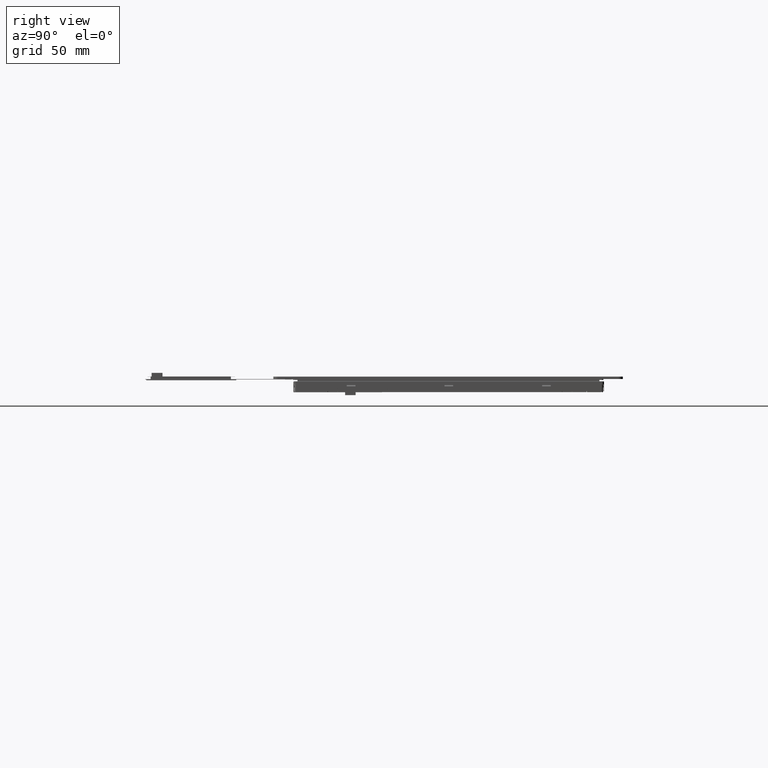
[diagram: clean part render]
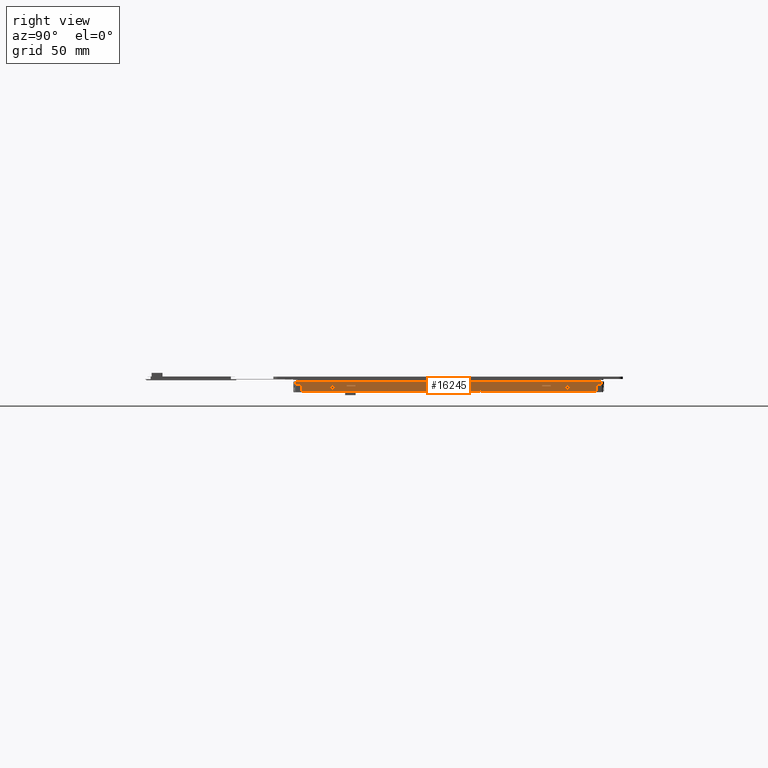
[diagram: same view with one face highlighted and labeled with its STEP entity id]
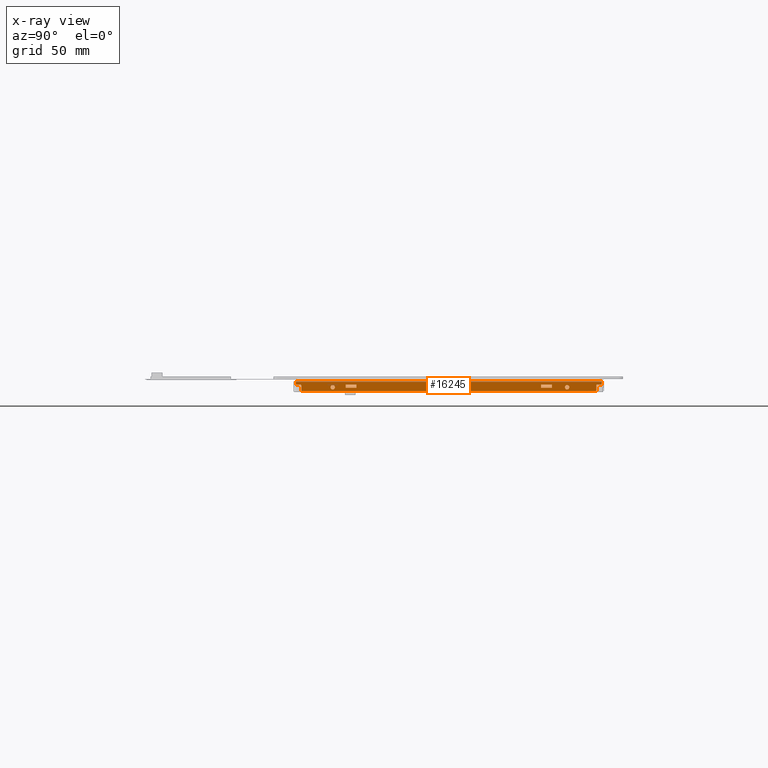
[diagram: x-ray of the same camera — body ghosted, the highlighted face saturated]
A machine part, right view. The second image highlights one B-rep face of the part: STEP entity #16245.
The next image is the same camera in x-ray: the body ghosted, the highlighted face saturated — about 0% of this face is hidden behind the body in this view.
In plain terms, the highlighted planar face has unit normal (1, -0, 0).
Its self-contained STEP definition (entity closure, byte-faithful):
#78=FACE_BOUND('',#2004,.T.);
#79=FACE_BOUND('',#2005,.T.);
#80=FACE_BOUND('',#2006,.T.);
#81=FACE_BOUND('',#2007,.T.);
#82=FACE_BOUND('',#2008,.T.);
#328=PLANE('',#17234);
#1111=FACE_OUTER_BOUND('',#2003,.T.);
#2003=EDGE_LOOP('',(#12424,#12425,#12426,#12427,#12428,#12429,#12430,#12431,
#12432,#12433,#12434,#12435));
#2004=EDGE_LOOP('',(#12436,#12437,#12438,#12439));
#2005=EDGE_LOOP('',(#12440,#12441,#12442,#12443));
#2006=EDGE_LOOP('',(#12444,#12445,#12446,#12447));
#2007=EDGE_LOOP('',(#12448));
#2008=EDGE_LOOP('',(#12449));
#3072=LINE('',#23255,#5193);
#3151=LINE('',#23430,#5272);
#3155=LINE('',#23438,#5276);
#3158=LINE('',#23444,#5279);
#3161=LINE('',#23449,#5282);
#3163=LINE('',#23454,#5284);
#3167=LINE('',#23462,#5288);
#3170=LINE('',#23468,#5291);
#3173=LINE('',#23473,#5294);
#3175=LINE('',#23478,#5296);
#3179=LINE('',#23486,#5300);
#3182=LINE('',#23492,#5303);
#3185=LINE('',#23497,#5306);
#3233=LINE('',#23601,#5354);
#3258=LINE('',#23676,#5379);
#3286=LINE('',#23739,#5407);
#3291=LINE('',#23750,#5412);
#3293=LINE('',#23755,#5414);
#3302=LINE('',#23846,#5423);
#3303=LINE('',#23921,#5424);
#5193=VECTOR('',#18748,10.);
#5272=VECTOR('',#18911,10.);
#5276=VECTOR('',#18917,10.);
#5279=VECTOR('',#18922,10.);
#5282=VECTOR('',#18927,10.);
#5284=VECTOR('',#18931,10.);
#5288=VECTOR('',#18937,10.);
#5291=VECTOR('',#18942,10.);
#5294=VECTOR('',#18947,10.);
#5296=VECTOR('',#18951,10.);
#5300=VECTOR('',#18957,10.);
#5303=VECTOR('',#18962,10.);
#5306=VECTOR('',#18967,10.);
#5354=VECTOR('',#19059,10.);
#5379=VECTOR('',#19122,10.);
#5407=VECTOR('',#19178,10.);
#5412=VECTOR('',#19187,10.);
#5414=VECTOR('',#19191,10.);
#5423=VECTOR('',#19216,10.);
#5424=VECTOR('',#19221,10.);
#7019=CIRCLE('',#17199,0.500000000000043);
#7020=CIRCLE('',#17201,0.500000000000013);
#7026=CIRCLE('',#17212,0.499999999999243);
#7028=CIRCLE('',#17217,0.499999999999978);
#7038=CIRCLE('',#17235,0.999999999999997);
#7039=CIRCLE('',#17236,1.);
#7495=VERTEX_POINT('',#23253);
#7496=VERTEX_POINT('',#23254);
#7549=VERTEX_POINT('',#23428);
#7550=VERTEX_POINT('',#23429);
#7553=VERTEX_POINT('',#23437);
#7555=VERTEX_POINT('',#23443);
#7557=VERTEX_POINT('',#23452);
#7558=VERTEX_POINT('',#23453);
#7561=VERTEX_POINT('',#23461);
#7563=VERTEX_POINT('',#23467);
#7565=VERTEX_POINT('',#23476);
#7566=VERTEX_POINT('',#23477);
#7569=VERTEX_POINT('',#23485);
#7571=VERTEX_POINT('',#23491);
#7605=VERTEX_POINT('',#23598);
#7606=VERTEX_POINT('',#23600);
#7636=VERTEX_POINT('',#23673);
#7637=VERTEX_POINT('',#23675);
#7655=VERTEX_POINT('',#23730);
#7658=VERTEX_POINT('',#23737);
#7661=VERTEX_POINT('',#23747);
#7662=VERTEX_POINT('',#23749);
#7663=VERTEX_POINT('',#23753);
#7664=VERTEX_POINT('',#23754);
#7671=VERTEX_POINT('',#24115);
#7672=VERTEX_POINT('',#24117);
#9180=EDGE_CURVE('',#7495,#7496,#3072,.T.);
#9269=EDGE_CURVE('',#7549,#7550,#3151,.T.);
#9273=EDGE_CURVE('',#7550,#7553,#3155,.T.);
#9276=EDGE_CURVE('',#7553,#7555,#3158,.T.);
#9279=EDGE_CURVE('',#7555,#7549,#3161,.T.);
#9281=EDGE_CURVE('',#7557,#7558,#3163,.T.);
#9285=EDGE_CURVE('',#7558,#7561,#3167,.T.);
#9288=EDGE_CURVE('',#7561,#7563,#3170,.T.);
#9291=EDGE_CURVE('',#7563,#7557,#3173,.T.);
#9293=EDGE_CURVE('',#7565,#7566,#3175,.T.);
#9297=EDGE_CURVE('',#7566,#7569,#3179,.T.);
#9300=EDGE_CURVE('',#7569,#7571,#3182,.T.);
#9303=EDGE_CURVE('',#7571,#7565,#3185,.T.);
#9353=EDGE_CURVE('',#7605,#7606,#3233,.T.);
#9392=EDGE_CURVE('',#7637,#7636,#3258,.T.);
#9426=EDGE_CURVE('',#7655,#7658,#3286,.T.);
#9431=EDGE_CURVE('',#7662,#7661,#3291,.T.);
#9433=EDGE_CURVE('',#7663,#7664,#3293,.T.);
#9444=EDGE_CURVE('',#7495,#7655,#3302,.T.);
#9446=EDGE_CURVE('',#7636,#7496,#3303,.T.);
#9450=EDGE_CURVE('',#7658,#7662,#7019,.T.);
#9451=EDGE_CURVE('',#7661,#7606,#7020,.T.);
#9457=EDGE_CURVE('',#7605,#7663,#7026,.T.);
#9459=EDGE_CURVE('',#7664,#7637,#7028,.T.);
#9471=EDGE_CURVE('',#7671,#7671,#7038,.T.);
#9472=EDGE_CURVE('',#7672,#7672,#7039,.T.);
#12424=ORIENTED_EDGE('',*,*,#9392,.T.);
#12425=ORIENTED_EDGE('',*,*,#9446,.T.);
#12426=ORIENTED_EDGE('',*,*,#9180,.F.);
#12427=ORIENTED_EDGE('',*,*,#9444,.T.);
#12428=ORIENTED_EDGE('',*,*,#9426,.T.);
#12429=ORIENTED_EDGE('',*,*,#9450,.T.);
#12430=ORIENTED_EDGE('',*,*,#9431,.T.);
#12431=ORIENTED_EDGE('',*,*,#9451,.T.);
#12432=ORIENTED_EDGE('',*,*,#9353,.F.);
#12433=ORIENTED_EDGE('',*,*,#9457,.T.);
#12434=ORIENTED_EDGE('',*,*,#9433,.T.);
#12435=ORIENTED_EDGE('',*,*,#9459,.T.);
#12436=ORIENTED_EDGE('',*,*,#9269,.F.);
#12437=ORIENTED_EDGE('',*,*,#9279,.F.);
#12438=ORIENTED_EDGE('',*,*,#9276,.F.);
#12439=ORIENTED_EDGE('',*,*,#9273,.F.);
#12440=ORIENTED_EDGE('',*,*,#9281,.F.);
#12441=ORIENTED_EDGE('',*,*,#9291,.F.);
#12442=ORIENTED_EDGE('',*,*,#9288,.F.);
#12443=ORIENTED_EDGE('',*,*,#9285,.F.);
#12444=ORIENTED_EDGE('',*,*,#9293,.F.);
#12445=ORIENTED_EDGE('',*,*,#9303,.F.);
#12446=ORIENTED_EDGE('',*,*,#9300,.F.);
#12447=ORIENTED_EDGE('',*,*,#9297,.F.);
#12448=ORIENTED_EDGE('',*,*,#9471,.F.);
#12449=ORIENTED_EDGE('',*,*,#9472,.F.);
#16245=ADVANCED_FACE('',(#1111,#78,#79,#80,#81,#82),#328,.T.);
#17199=AXIS2_PLACEMENT_3D('',#24073,#19235,#19236);
#17201=AXIS2_PLACEMENT_3D('',#24075,#19239,#19240);
#17212=AXIS2_PLACEMENT_3D('',#24086,#19261,#19262);
#17217=AXIS2_PLACEMENT_3D('',#24091,#19271,#19272);
#17234=AXIS2_PLACEMENT_3D('',#24114,#19307,#19308);
#17235=AXIS2_PLACEMENT_3D('',#24116,#19309,#19310);
#17236=AXIS2_PLACEMENT_3D('',#24118,#19311,#19312);
#18748=DIRECTION('',(4.44089209850056E-16,1.,4.96144862306856E-14));
#18911=DIRECTION('',(1.22123378696216E-16,-2.86245104878698E-17,-1.));
#18917=DIRECTION('',(4.44089209850062E-16,1.,-2.86245104878698E-17));
#18922=DIRECTION('',(-1.22123378696216E-16,2.86245104878698E-17,1.));
#18927=DIRECTION('',(-4.44089209850062E-16,-1.,2.86245104878698E-17));
#18931=DIRECTION('',(-4.44089209850062E-16,-1.,2.86245104878698E-17));
#18937=DIRECTION('',(1.22123378696216E-16,-2.86245104878698E-17,-1.));
#18942=DIRECTION('',(4.44089209850062E-16,1.,-2.86245104878698E-17));
#18947=DIRECTION('',(-1.22123378696216E-16,2.86245104878698E-17,1.));
#18951=DIRECTION('',(-4.44089209850062E-16,-1.,2.86245104878698E-17));
#18957=DIRECTION('',(1.22123378696216E-16,-2.86245104878698E-17,-1.));
#18962=DIRECTION('',(4.44089209850062E-16,1.,-2.86245104878698E-17));
#18967=DIRECTION('',(-1.22123378696216E-16,2.86245104878698E-17,1.));
#19059=DIRECTION('',(-4.44089209850062E-16,-1.,2.86245104878698E-17));
#19122=DIRECTION('',(4.44089209850062E-16,1.,-2.86245104878698E-17));
#19178=DIRECTION('',(4.44089209850062E-16,1.,-2.86245104878698E-17));
#19187=DIRECTION('',(1.22123378696216E-16,-2.86245104878698E-17,-1.));
#19191=DIRECTION('',(-1.22123378696216E-16,2.86245104878698E-17,1.));
#19216=DIRECTION('',(1.22123378696216E-16,-2.86245104878698E-17,-1.));
#19221=DIRECTION('',(-1.22123378696216E-16,2.86245104878698E-17,1.));
#19235=DIRECTION('center_axis',(-1.,8.62141846757359E-14,8.56479720871756E-14));
#19236=DIRECTION('ref_axis',(7.1498362785854E-14,1.,-8.47525190771879E-14));
#19239=DIRECTION('center_axis',(1.,8.53260062560368E-14,8.58922188445844E-14));
#19240=DIRECTION('ref_axis',(7.11763969547044E-14,-1.779219290449E-14,-1.));
#19261=DIRECTION('center_axis',(1.,-4.44089209850062E-16,1.22123378696216E-16));
#19262=DIRECTION('ref_axis',(4.44089209849877E-16,1.,1.51653602712977E-12));
#19271=DIRECTION('center_axis',(-1.,4.44089209850062E-16,-1.22123378696216E-16));
#19272=DIRECTION('ref_axis',(-1.221233786962E-16,3.55557612984945E-14,1.));
#19307=DIRECTION('center_axis',(1.,-4.44089209850062E-16,1.22123378696216E-16));
#19308=DIRECTION('ref_axis',(1.22123378696216E-16,-2.86245104878698E-17,
-1.));
#19309=DIRECTION('center_axis',(1.,8.92442241257421E-15,5.78554768576778E-14));
#19310=DIRECTION('ref_axis',(1.81952345732602E-14,0.811225738210911,-0.584733102931725));
#19311=DIRECTION('center_axis',(1.,-4.44089209850062E-16,1.22123378696216E-16));
#19312=DIRECTION('ref_axis',(4.31666179257662E-16,0.811225738210913,-0.584733102931722));
#23253=CARTESIAN_POINT('',(118.5,-70.3499999999935,-2.38999999999987));
#23254=CARTESIAN_POINT('',(118.5,70.6500000000065,-2.38999999999767));
#23255=CARTESIAN_POINT('',(118.5,-70.3499999999935,-2.38999999999977));
#23428=CARTESIAN_POINT('',(118.5,-47.3499999999935,-3.63999999999997));
#23429=CARTESIAN_POINT('',(118.5,-47.3499999999935,-5.16999999999997));
#23430=CARTESIAN_POINT('',(118.5,-47.3499999999935,-3.63999999999997));
#23437=CARTESIAN_POINT('',(118.5,-42.3499999999935,-5.16999999999997));
#23438=CARTESIAN_POINT('',(118.5,-47.3499999999935,-5.16999999999997));
#23443=CARTESIAN_POINT('',(118.5,-42.3499999999935,-3.63999999999997));
#23444=CARTESIAN_POINT('',(118.5,-42.3499999999935,-5.16999999999997));
#23449=CARTESIAN_POINT('',(118.5,-42.3499999999935,-3.63999999999997));
#23452=CARTESIAN_POINT('',(118.5,2.65000000000649,-3.63999999999997));
#23453=CARTESIAN_POINT('',(118.5,-2.34999999999351,-3.63999999999997));
#23454=CARTESIAN_POINT('',(118.5,2.65000000000649,-3.63999999999997));
#23461=CARTESIAN_POINT('',(118.5,-2.34999999999351,-5.16999999999997));
#23462=CARTESIAN_POINT('',(118.5,-2.34999999999351,-3.63999999999997));
#23467=CARTESIAN_POINT('',(118.5,2.65000000000649,-5.16999999999997));
#23468=CARTESIAN_POINT('',(118.5,-2.34999999999351,-5.16999999999997));
#23473=CARTESIAN_POINT('',(118.5,2.65000000000649,-5.16999999999997));
#23476=CARTESIAN_POINT('',(118.5,47.6500000000065,-3.63999999999995));
#23477=CARTESIAN_POINT('',(118.5,42.6500000000065,-3.63999999999995));
#23478=CARTESIAN_POINT('',(118.5,47.6500000000065,-3.63999999999995));
#23485=CARTESIAN_POINT('',(118.5,42.6500000000065,-5.13999999999995));
#23486=CARTESIAN_POINT('',(118.5,42.6500000000065,-3.63999999999995));
#23491=CARTESIAN_POINT('',(118.5,47.6500000000065,-5.13999999999995));
#23492=CARTESIAN_POINT('',(118.5,42.6500000000065,-5.13999999999995));
#23497=CARTESIAN_POINT('',(118.5,47.6500000000065,-5.13999999999995));
#23598=CARTESIAN_POINT('',(118.5,67.6500000000065,-6.73999999999997));
#23600=CARTESIAN_POINT('',(118.5,-67.3499999999935,-6.73999999999997));
#23601=CARTESIAN_POINT('',(118.5,67.6500000000065,-6.73999999999997));
#23673=CARTESIAN_POINT('',(118.5,70.6500000000065,-3.63999999999997));
#23675=CARTESIAN_POINT('',(118.5,68.6500000000065,-3.63999999999997));
#23676=CARTESIAN_POINT('',(118.5,68.6500000000065,-3.63999999999997));
#23730=CARTESIAN_POINT('',(118.5,-70.3499999999935,-3.63999999999997));
#23737=CARTESIAN_POINT('',(118.5,-68.3499999999935,-3.63999999999997));
#23739=CARTESIAN_POINT('',(118.5,-70.3499999999935,-3.63999999999997));
#23747=CARTESIAN_POINT('',(118.5,-67.8499999999935,-6.23999999999997));
#23749=CARTESIAN_POINT('',(118.5,-67.8499999999935,-4.13999999999997));
#23750=CARTESIAN_POINT('',(118.5,-67.8499999999935,-4.13999999999997));
#23753=CARTESIAN_POINT('',(118.5,68.1500000000065,-6.23999999999997));
#23754=CARTESIAN_POINT('',(118.5,68.1500000000065,-4.13999999999997));
#23755=CARTESIAN_POINT('',(118.5,68.1500000000065,-6.23999999999997));
#23846=CARTESIAN_POINT('',(118.5,-70.3499999999935,-2.38999999999987));
#23921=CARTESIAN_POINT('',(118.5,70.6500000000065,-3.63999999999997));
#24073=CARTESIAN_POINT('Origin',(118.5,-68.3499999999936,-4.14000000000001));
#24075=CARTESIAN_POINT('Origin',(118.5,-67.3499999999935,-6.23999999999996));
#24086=CARTESIAN_POINT('Origin',(118.5,67.6500000000073,-6.24000000000073));
#24091=CARTESIAN_POINT('Origin',(118.5,68.6500000000065,-4.13999999999995));
#24114=CARTESIAN_POINT('Origin',(118.5,0.150000000006494,-6.73999999999997));
#24115=CARTESIAN_POINT('',(118.5,55.6500000000065,-4.93999999999996));
#24116=CARTESIAN_POINT('Origin',(118.5,54.6500000000065,-4.93999999999997));
#24117=CARTESIAN_POINT('',(118.5,-52.3499999999935,-4.93999999999997));
#24118=CARTESIAN_POINT('Origin',(118.5,-53.3499999999935,-4.93999999999997));